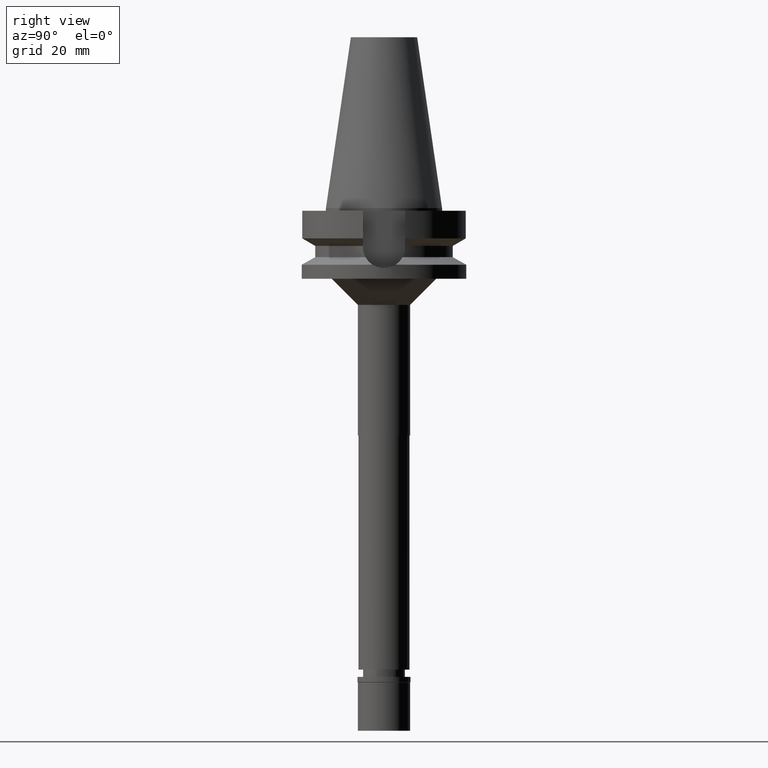
[diagram: clean part render]
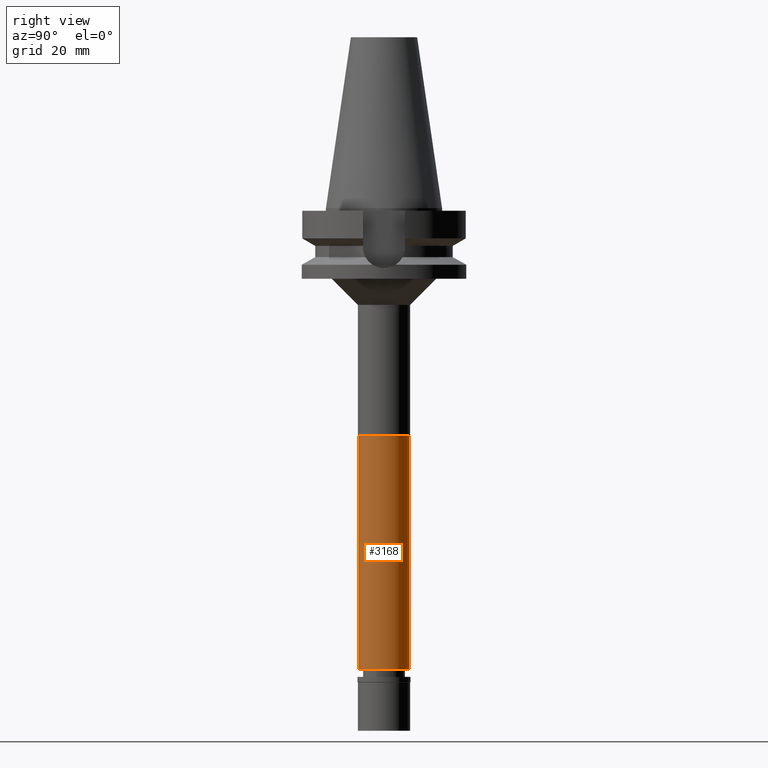
[diagram: same view with one face highlighted and labeled with its STEP entity id]
A machine part, right view. The second image highlights one B-rep face of the part: STEP entity #3168.
In plain terms, the highlighted cylindrical surface (edge-blend (fillet) strip) has radius 9.75 mm, axis along (0, 0, -1).
Its self-contained STEP definition (entity closure, byte-faithful):
#15 = VERTEX_POINT ( 'NONE', #820 ) ;
#205 = DIRECTION ( 'NONE',  ( 0.0000000000000000000, 0.0000000000000000000, -1.000000000000000000 ) ) ;
#276 = ORIENTED_EDGE ( 'NONE', *, *, #730, .T. ) ;
#502 = ORIENTED_EDGE ( 'NONE', *, *, #1009, .T. ) ;
#512 = DIRECTION ( 'NONE',  ( 0.0000000000000000000, 0.0000000000000000000, 1.000000000000000000 ) ) ;
#517 = CARTESIAN_POINT ( 'NONE',  ( 0.0000000000000000000, -9.750000000000000000, -176.5999999999999943 ) ) ;
#548 = EDGE_LOOP ( 'NONE', ( #276, #2568, #502, #1991 ) ) ;
#626 = EDGE_CURVE ( 'NONE', #15, #989, #2215, .T. ) ;
#631 = CARTESIAN_POINT ( 'NONE',  ( 0.0000000000000000000, -9.750000000000000000, -87.00000000000000000 ) ) ;
#730 = EDGE_CURVE ( 'NONE', #15, #2765, #2419, .T. ) ;
#786 = VECTOR ( 'NONE', #205, 1000.000000000000000 ) ;
#799 = AXIS2_PLACEMENT_3D ( 'NONE', #1019, #2968, #1948 ) ;
#820 = CARTESIAN_POINT ( 'NONE',  ( 0.0000000000000000000, 9.750000000000000000, -87.00000000000000000 ) ) ;
#989 = VERTEX_POINT ( 'NONE', #1973 ) ;
#1009 = EDGE_CURVE ( 'NONE', #2412, #989, #1657, .T. ) ;
#1019 = CARTESIAN_POINT ( 'NONE',  ( 0.0000000000000000000, 0.0000000000000000000, 0.0000000000000000000 ) ) ;
#1242 = CARTESIAN_POINT ( 'NONE',  ( 0.0000000000000000000, 9.750000000000000000, -87.00000000000000000 ) ) ;
#1382 = DIRECTION ( 'NONE',  ( 0.0000000000000000000, 0.0000000000000000000, -1.000000000000000000 ) ) ;
#1496 = CYLINDRICAL_SURFACE ( 'NONE', #799, 9.750000000000000000 ) ;
#1657 = CIRCLE ( 'NONE', #1710, 9.750000000000000000 ) ;
#1667 = VECTOR ( 'NONE', #1382, 1000.000000000000000 ) ;
#1710 = AXIS2_PLACEMENT_3D ( 'NONE', #2944, #512, #2697 ) ;
#1755 = AXIS2_PLACEMENT_3D ( 'NONE', #2004, #1762, #1778 ) ;
#1762 = DIRECTION ( 'NONE',  ( 0.0000000000000000000, 0.0000000000000000000, -1.000000000000000000 ) ) ;
#1778 = DIRECTION ( 'NONE',  ( 0.0000000000000000000, 1.000000000000000000, 0.0000000000000000000 ) ) ;
#1948 = DIRECTION ( 'NONE',  ( 0.0000000000000000000, -1.000000000000000000, 0.0000000000000000000 ) ) ;
#1973 = CARTESIAN_POINT ( 'NONE',  ( 0.0000000000000000000, 9.750000000000000000, -176.5999999999999943 ) ) ;
#1991 = ORIENTED_EDGE ( 'NONE', *, *, #626, .F. ) ;
#2004 = CARTESIAN_POINT ( 'NONE',  ( 0.0000000000000000000, 0.0000000000000000000, -87.00000000000000000 ) ) ;
#2122 = EDGE_CURVE ( 'NONE', #2765, #2412, #2824, .T. ) ;
#2215 = LINE ( 'NONE', #1242, #786 ) ;
#2323 = CARTESIAN_POINT ( 'NONE',  ( 0.0000000000000000000, -9.750000000000000000, -87.00000000000000000 ) ) ;
#2412 = VERTEX_POINT ( 'NONE', #517 ) ;
#2419 = CIRCLE ( 'NONE', #1755, 9.750000000000000000 ) ;
#2568 = ORIENTED_EDGE ( 'NONE', *, *, #2122, .T. ) ;
#2697 = DIRECTION ( 'NONE',  ( 0.0000000000000000000, -1.000000000000000000, 0.0000000000000000000 ) ) ;
#2765 = VERTEX_POINT ( 'NONE', #2323 ) ;
#2824 = LINE ( 'NONE', #631, #1667 ) ;
#2944 = CARTESIAN_POINT ( 'NONE',  ( 0.0000000000000000000, 0.0000000000000000000, -176.5999999999999943 ) ) ;
#2968 = DIRECTION ( 'NONE',  ( 0.0000000000000000000, 0.0000000000000000000, -1.000000000000000000 ) ) ;
#3155 = FACE_OUTER_BOUND ( 'NONE', #548, .T. ) ;
#3168 = ADVANCED_FACE ( 'NONE', ( #3155 ), #1496, .T. ) ;